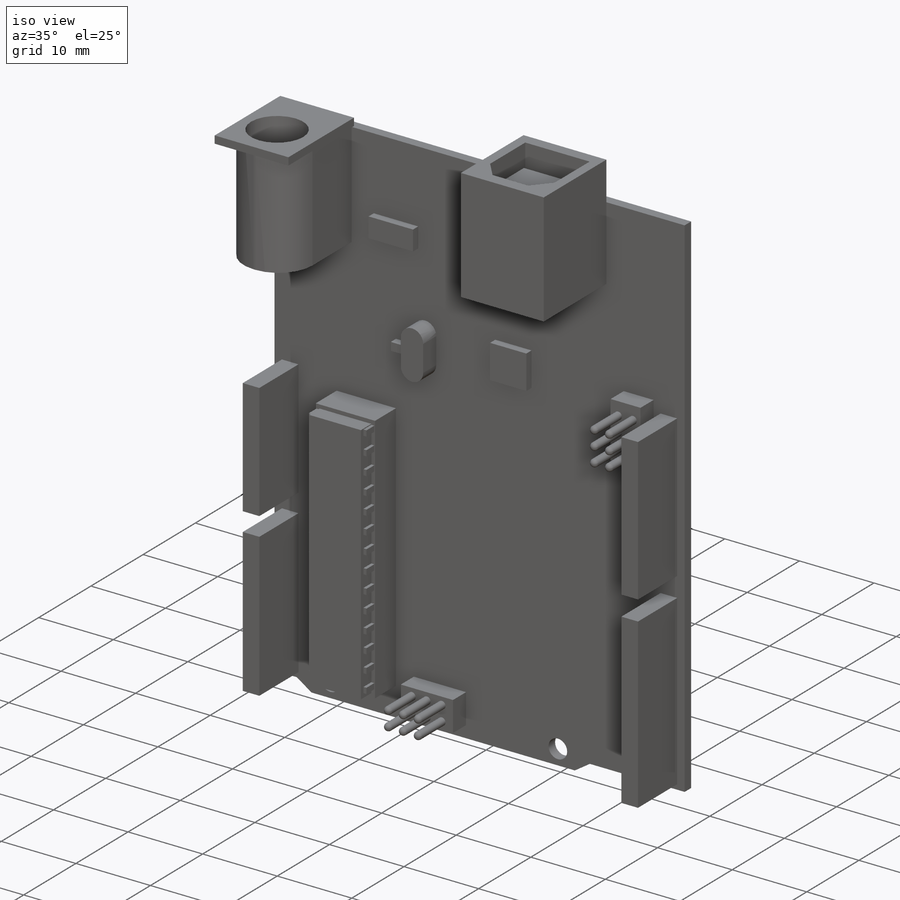
[diagram: iso view]
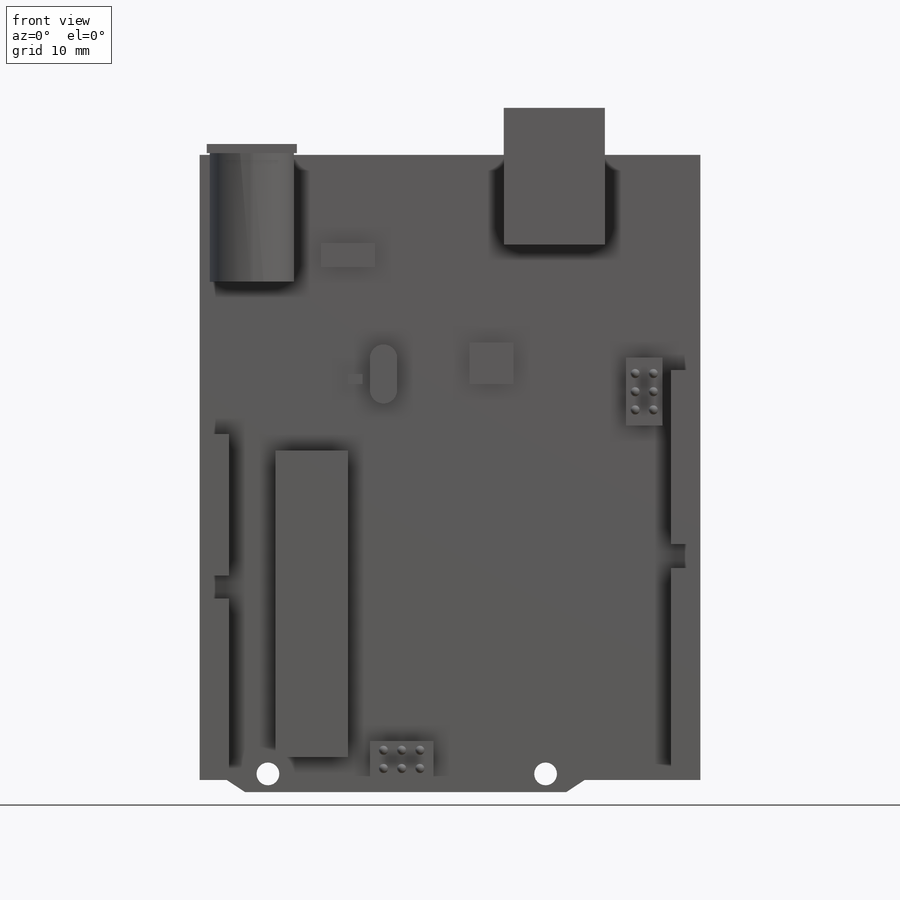
[diagram: front view]
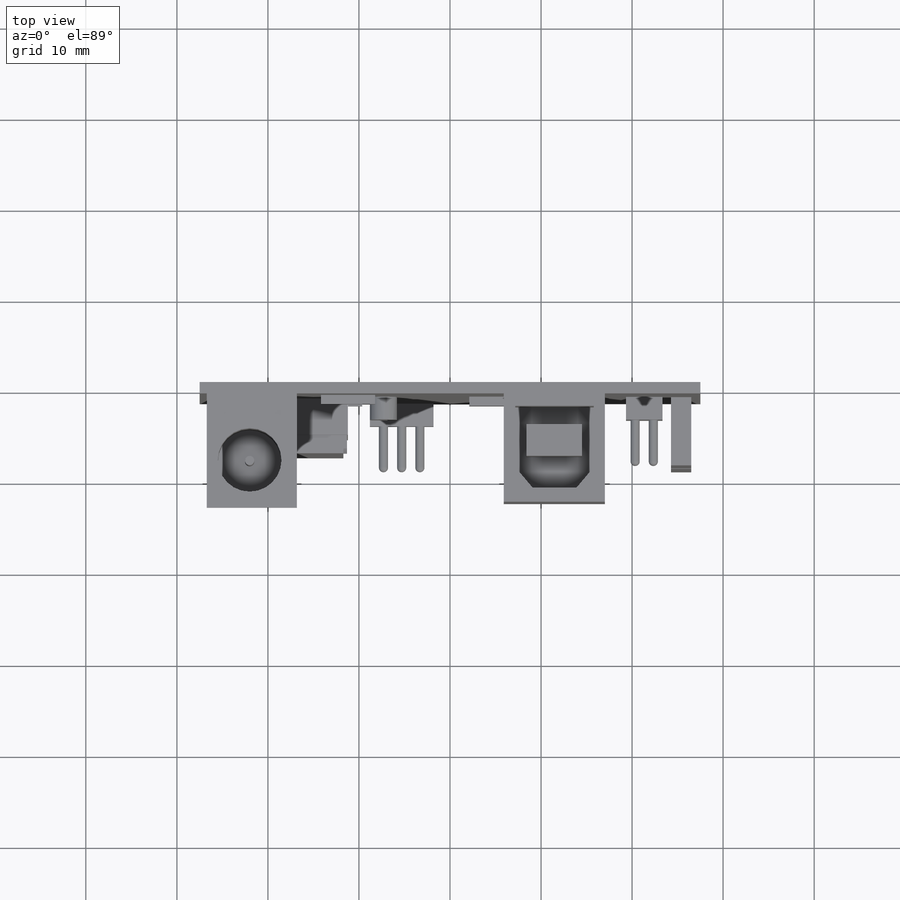
[diagram: top view]
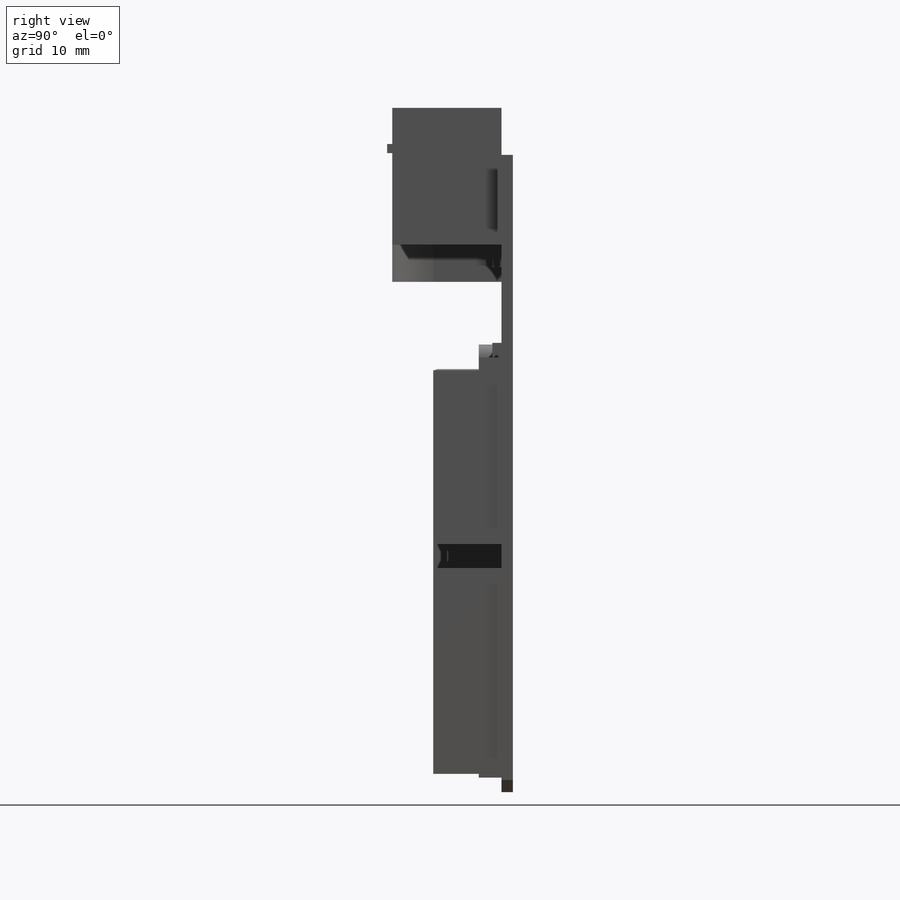
[diagram: right view]
SOLIDWORKS PART (.sldprt)
format: sldprt  version: not decoded by parser v0  size: 1,125,376 bytes
history: native  units: mm
features: sketch x18, extrude x11, cut_extrude x7, fillet x3, material x1 (+13 scaffold rows collapsed)
feature tree (53):
  scaffold x13  (default folders/planes/origin — collapsed)
  material  "Material <not specified>"
  sketch  "Sketch1"  dims[D1=70.0mm]
  extrude  "Boss-Extrude1"  Depth=1.25mm
  sketch  "Sketch2"  dims[D1=2.0mm]
  extrude  "Boss-Extrude2"  Depth=7.5mm
  sketch  "Sketch3"
  extrude  "Boss-Extrude3"  Depth=6mm
  sketch  "Sketch5"
  extrude  "Boss-Extrude5"  Depth=12mm
  fillet  "Fillet1"  Radius=4.5mm
  sketch  "Sketch6"
  cut_extrude  "Cut-Extrude1"  Depth=10mm
  sketch  "Sketch8"  dims[D1=30.5mm]
  cut_extrude  "Cut-Extrude2"  Depth=10mm
  sketch  "Sketch9"
  extrude  "Boss-Extrude6"  Depth=1mm
  sketch  "Sketch10"
  cut_extrude  "Cut-Extrude3"  Depth=12mm
  sketch  "Sketch11"  dims[D1=~0.622326mm]
  extrude  "Boss-Extrude7"  Depth=8mm
  sketch  "Sketch12"  dims[D1=0.5mm]
  cut_extrude  "Cut-Extrude4"  Depth=2mm
  sketch  "Sketch13"  dims[c1.D1=0.75mm c1.D2=0.5mm c2.D1=14.0]
  extrude  "Boss-Extrude8"  Depth=1.5mm
  sketch  "Sketch14"
  cut_extrude  "Cut-Extrude5"  Depth=0.1mm
  sketch  "Sketch15"
  cut_extrude  "Cut-Extrude6"  Depth=0.1mm
  sketch  "Sketch16"
  cut_extrude  "Cut-Extrude7"  Depth=10mm
  sketch  "Sketch17"
  extrude  "Boss-Extrude9"  Depth=8mm
  sketch  "Sketch18"  dims[D1=6.5mm]
  extrude  "Boss-Extrude10"  Depth=2.5mm
  fillet  "Fillet2"  Radius=1.5mm
  sketch  "Sketch19"
  extrude  "Boss-Extrude11"  Depth=1mm
  sketch  "Sketch21"  dims[D1=2.0mm]
  extrude  "Boss-Extrude12"  Depth=5mm
  fillet  "Fillet3"  Radius=0.5mm
decode coverage: 29 of 39 modeling features carry decoded parameters
note: ~ marks probable driven/reference dimensions
note: suppression state not decoded; provenance and decode notes live in map.json
